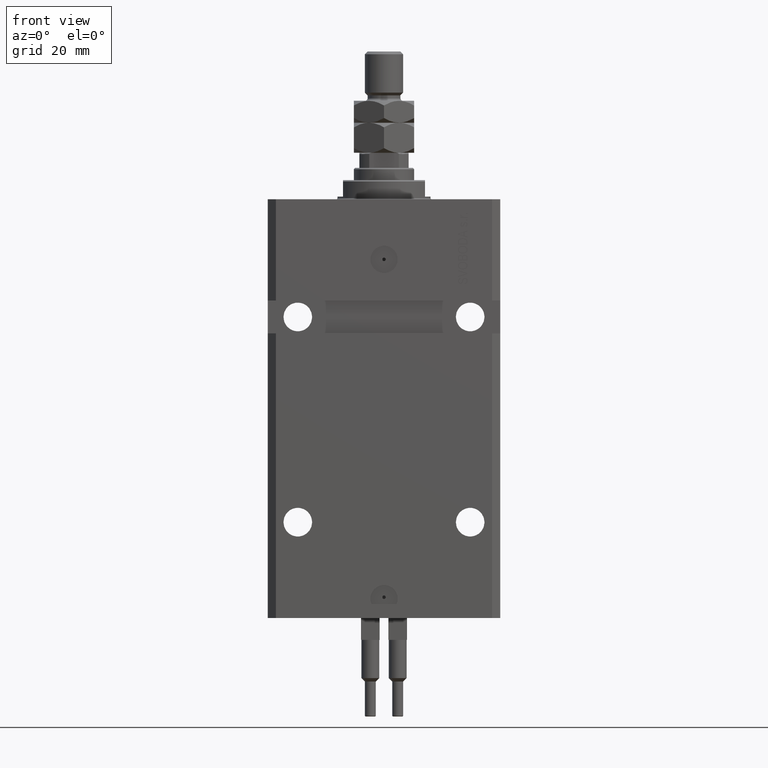
[diagram: clean part render]
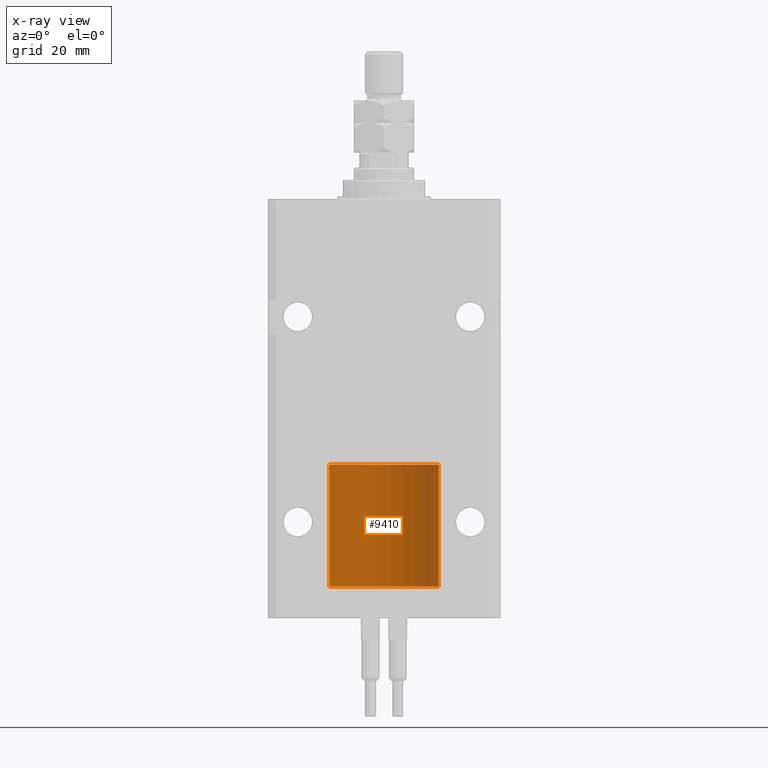
[diagram: x-ray — body ghosted, one internal face saturated and labeled with its STEP entity id]
A machine part, front view, then the same camera in x-ray: the body is ghosted and one INTERNAL B-rep face — a face not visible from any outside direction — is saturated and labeled: STEP entity #9410.
In plain terms, the highlighted cylindrical surface (partial cylindrical patch) has radius 20 mm, axis along (-0, -0, -1).
Its self-contained STEP definition (entity closure, byte-faithful):
#1526 = DIRECTION ( 'NONE',  ( -1.000000000000000000, 0.000000000000000000, 0.000000000000000000 ) ) ;
#1756 = VERTEX_POINT ( 'NONE', #34902 ) ;
#1817 = DIRECTION ( 'NONE',  ( -0.000000000000000000, -0.000000000000000000, -1.000000000000000000 ) ) ;
#7295 = EDGE_CURVE ( 'NONE', #1756, #42948, #7886, .T. ) ;
#7724 = CARTESIAN_POINT ( 'NONE',  ( -20.00000000000000000, 0.000000000000000000, 44.60000000000000142 ) ) ;
#7886 = CIRCLE ( 'NONE', #42548, 20.00000000000000000 ) ;
#8046 = DIRECTION ( 'NONE',  ( 1.000000000000000000, 0.000000000000000000, 0.000000000000000000 ) ) ;
#8190 = DIRECTION ( 'NONE',  ( -0.000000000000000000, -0.000000000000000000, -1.000000000000000000 ) ) ;
#9078 = CARTESIAN_POINT ( 'NONE',  ( 20.00000000000000000, 2.449293598294706513E-15, 0.000000000000000000 ) ) ;
#9410 = ADVANCED_FACE ( 'NONE', ( #36376 ), #12902, .T. ) ;
#10248 = VERTEX_POINT ( 'NONE', #9078 ) ;
#10382 = EDGE_CURVE ( 'NONE', #1756, #10248, #31188, .T. ) ;
#11129 = CARTESIAN_POINT ( 'NONE',  ( 0.000000000000000000, 0.000000000000000000, 44.60000000000000142 ) ) ;
#12235 = AXIS2_PLACEMENT_3D ( 'NONE', #28432, #43422, #8046 ) ;
#12902 = CYLINDRICAL_SURFACE ( 'NONE', #30232, 20.00000000000000000 ) ;
#17054 = EDGE_LOOP ( 'NONE', ( #26608, #30397, #40670, #25134 ) ) ;
#18084 = CARTESIAN_POINT ( 'NONE',  ( -20.00000000000000000, 0.000000000000000000, 44.60000000000000142 ) ) ;
#20994 = EDGE_CURVE ( 'NONE', #42948, #48891, #25816, .T. ) ;
#21183 = VECTOR ( 'NONE', #8190, 1000.000000000000000 ) ;
#25134 = ORIENTED_EDGE ( 'NONE', *, *, #20994, .F. ) ;
#25816 = LINE ( 'NONE', #18084, #41491 ) ;
#26608 = ORIENTED_EDGE ( 'NONE', *, *, #7295, .F. ) ;
#26613 = DIRECTION ( 'NONE',  ( 0.000000000000000000, 0.000000000000000000, 1.000000000000000000 ) ) ;
#27872 = CIRCLE ( 'NONE', #12235, 20.00000000000000000 ) ;
#28432 = CARTESIAN_POINT ( 'NONE',  ( 0.000000000000000000, 0.000000000000000000, 0.000000000000000000 ) ) ;
#30232 = AXIS2_PLACEMENT_3D ( 'NONE', #39744, #44629, #1526 ) ;
#30397 = ORIENTED_EDGE ( 'NONE', *, *, #10382, .T. ) ;
#31000 = DIRECTION ( 'NONE',  ( 1.000000000000000000, 0.000000000000000000, 0.000000000000000000 ) ) ;
#31188 = LINE ( 'NONE', #42814, #21183 ) ;
#32082 = EDGE_CURVE ( 'NONE', #10248, #48891, #27872, .T. ) ;
#34902 = CARTESIAN_POINT ( 'NONE',  ( 20.00000000000000000, 2.449293598294706513E-15, 44.60000000000000142 ) ) ;
#36376 = FACE_OUTER_BOUND ( 'NONE', #17054, .T. ) ;
#37272 = CARTESIAN_POINT ( 'NONE',  ( -20.00000000000000000, 0.000000000000000000, 0.000000000000000000 ) ) ;
#39744 = CARTESIAN_POINT ( 'NONE',  ( 0.000000000000000000, 0.000000000000000000, 44.60000000000000142 ) ) ;
#40670 = ORIENTED_EDGE ( 'NONE', *, *, #32082, .T. ) ;
#41491 = VECTOR ( 'NONE', #1817, 1000.000000000000000 ) ;
#42548 = AXIS2_PLACEMENT_3D ( 'NONE', #11129, #26613, #31000 ) ;
#42814 = CARTESIAN_POINT ( 'NONE',  ( 20.00000000000000000, 2.449293598294706513E-15, 44.60000000000000142 ) ) ;
#42948 = VERTEX_POINT ( 'NONE', #7724 ) ;
#43422 = DIRECTION ( 'NONE',  ( 0.000000000000000000, 0.000000000000000000, 1.000000000000000000 ) ) ;
#44629 = DIRECTION ( 'NONE',  ( -0.000000000000000000, -0.000000000000000000, -1.000000000000000000 ) ) ;
#48891 = VERTEX_POINT ( 'NONE', #37272 ) ;